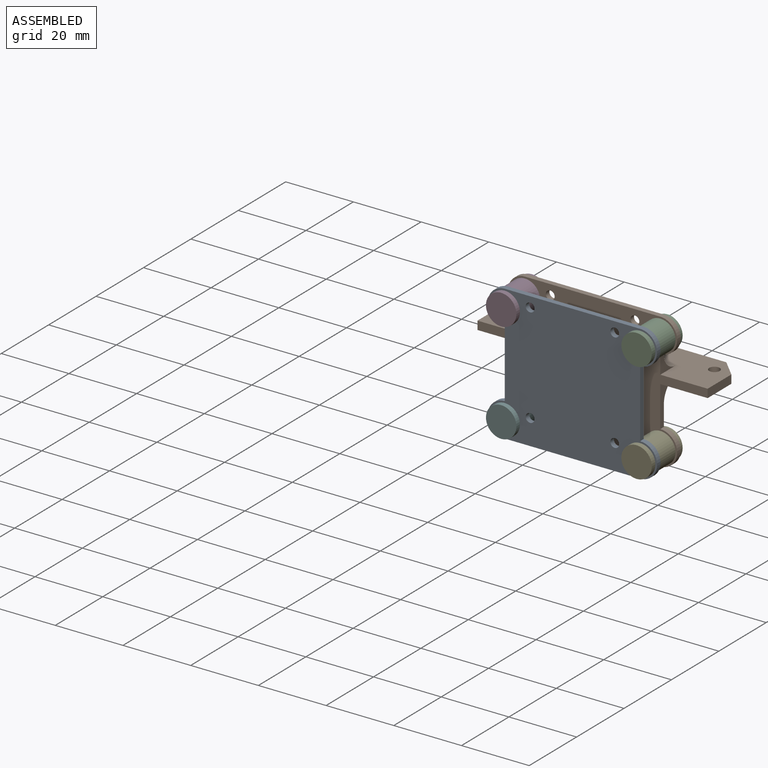
[diagram: assembled view]
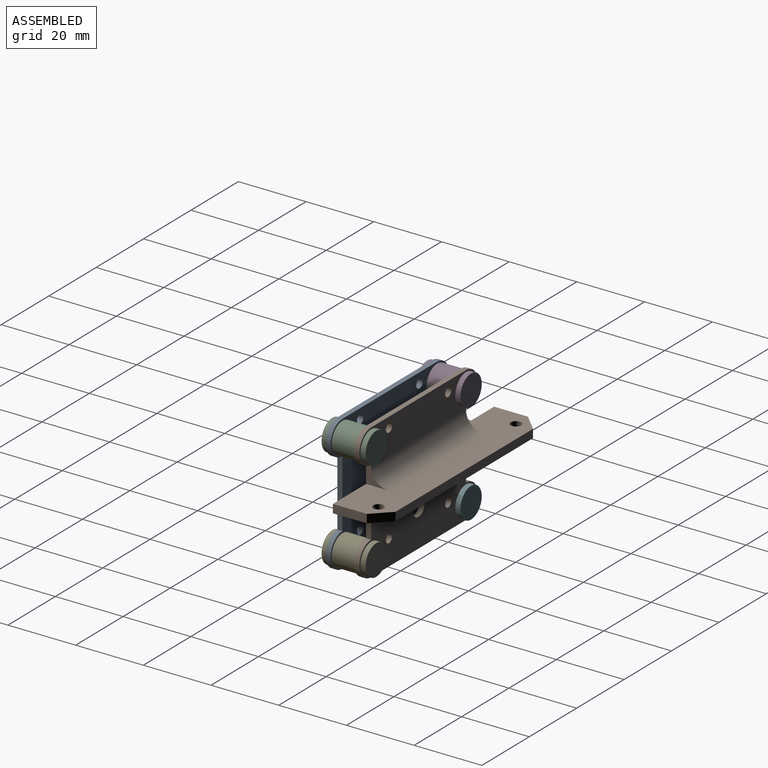
[diagram: assembled view, second angle]
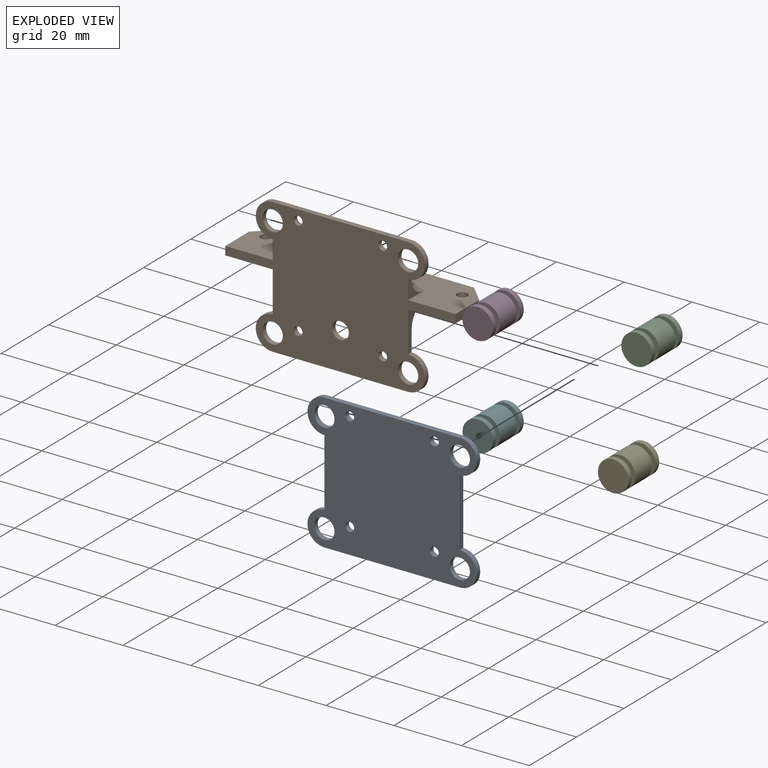
[diagram: exploded view]
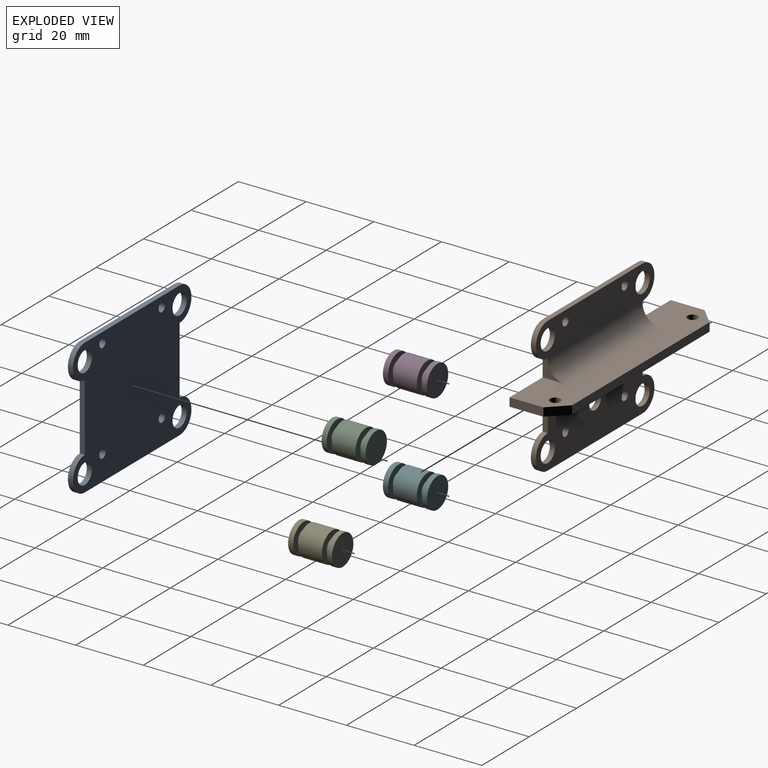
[diagram: exploded view, second angle]
ASSEMBLY  parts=6 mates=6
PART A: 18 faces, bbox 50x40x1.5 mm
  f0: cylinder r=5mm len=10mm, axis (0,0,-1), area 23.6mm2, adj f1,f14,f16,f17
  f1: plane 40x1.5mm, normal (0,1,0), area 60mm2, adj f0,f2,f16,f17
  f2: cylinder r=5mm len=10mm, axis (0,0,-1), area 23.6mm2, adj f1,f3,f16,f17
  f3: plane 20x1.5mm, normal (-1,0,0), area 30mm2, adj f2,f4,f16,f17
  f4: cylinder r=5mm len=10mm, axis (0,0,-1), area 23.6mm2, adj f3,f5,f16,f17
  f5: plane 40x1.5mm, normal (0,-1,0), area 60mm2, adj f4,f6,f16,f17
  f6: cylinder r=5mm len=10mm, axis (0,0,-1), area 23.6mm2, adj f5,f14,f16,f17
  f7: cylinder r=3mm len=6mm, axis (0,0,-1), area 28.3mm2, adj f16,f17
  f8: cylinder r=3mm len=6mm, axis (0,0,-1), area 28.3mm2, adj f16,f17
  f9: cylinder r=3mm len=6mm, axis (0,0,-1), area 28.3mm2, adj f16,f17
  f10: cylinder r=1.3mm len=2.6mm, axis (0,0,-1), area 12.3mm2, adj f16,f17
  f11: cylinder r=1.3mm len=2.6mm, axis (0,0,-1), area 12.3mm2, adj f16,f17
  f12: cylinder r=1.3mm len=2.6mm, axis (0,0,-1), area 12.3mm2, adj f16,f17
  f13: cylinder r=1.3mm len=2.6mm, axis (0,0,-1), area 12.3mm2, adj f16,f17
  f14: plane 20x1.5mm, normal (1,0,0), area 30mm2, adj f0,f6,f16,f17
  f15: cylinder r=3mm len=6mm, axis (0,0,-1), area 28.3mm2, adj f16,f17
  f16: plane 50x40mm, normal (0,0,1), area 1622.7mm2, adj f0,f1,f2,f3,f4,f5,f6,f7
  f17: plane 50x40mm, normal (0,0,-1), area 1622.7mm2, adj f0,f1,f2,f3,f4,f5,f6,f7
PART B: 33 faces, bbox 68x15x40 mm
  f0: plane 68x40mm, normal (0,-1,0), area 1673.1mm2, adj f1,f7,f8,f9,f10,f11,f12,f13
  f1: plane 10x2.5mm, normal (1,0,0), area 25mm2, adj f0,f2,f8,f9
  f2: plane 5x5mm, normal (0.71,0.71,0), area 17.7mm2, adj f1,f3,f8,f9
  f3: plane 58x2.5mm, normal (0,1,0), area 145mm2, adj f2,f4,f8,f9
  f4: plane 5x5mm, normal (-0.71,0.71,0), area 17.7mm2, adj f3,f7,f8,f9
  f5: cylinder r=1.55mm len=3.1mm, axis (0,0,-1), area 24.3mm2, adj f8,f9
  f6: cylinder r=1.55mm len=3.1mm, axis (0,0,-1), area 24.3mm2, adj f8,f9
  f7: plane 10x2.5mm, normal (-1,0,0), area 25mm2, adj f0,f4,f8,f9
  f8: plane 68x15mm, normal (0,0,1), area 719.9mm2, adj f0,f1,f2,f3,f4,f5,f6,f7
  f9: plane 68x15mm, normal (0,0,-1), area 679.9mm2, adj f0,f1,f2,f3,f4,f5,f6,f7
  f10: cylinder r=5mm len=10mm, axis (0,-1,0), area 23.6mm2, adj f0,f11,f18,f20
  f11: plane 40x1.5mm, normal (0,0,-1), area 60mm2, adj f0,f10,f12,f18
  f12: cylinder r=5mm len=10mm, axis (0,-1,0), area 23.6mm2, adj f0,f11,f18,f19
  f13: cylinder r=1.3mm len=2.6mm, axis (0,-1,0), area 12.3mm2, adj f0,f18
  f14: cylinder r=1.3mm len=2.6mm, axis (0,-1,0), area 12.3mm2, adj f0,f18
  f15: cylinder r=3mm len=6mm, axis (0,-1,0), area 28.3mm2, adj f0,f18
  f16: cylinder r=3mm len=6mm, axis (0,-1,0), area 28.3mm2, adj f0,f18
  f17: cylinder r=2.5mm len=5mm, axis (0,-1,0), area 23.6mm2, adj f0,f18
  f18: plane 50x16mm, normal (0,1,0), area 631.7mm2, adj f10,f11,f12,f13,f14,f15,f16,f17
  f19: plane 12x7.5mm, normal (1,0,0), area 25.7mm2, adj f0,f9,f12,f18,f31
  f20: plane 12x7.5mm, normal (-1,0,0), area 25.7mm2, adj f0,f9,f10,f18,f31
  f21: cylinder r=5mm len=10mm, axis (0,-1,0), area 23.6mm2, adj f0,f22,f28,f30
  f22: plane 40x1.5mm, normal (0,0,1), area 60mm2, adj f0,f21,f23,f30
  f23: cylinder r=5mm len=10mm, axis (0,-1,0), area 23.6mm2, adj f0,f22,f24,f30
  f24: plane 6.5x5.5mm, normal (-1,0,0), area 13.6mm2, adj f0,f8,f23,f30,f32
  f25: cylinder r=3mm len=6mm, axis (0,-1,0), area 28.3mm2, adj f0,f30
  f26: cylinder r=1.3mm len=2.6mm, axis (0,-1,0), area 12.3mm2, adj f0,f30
  f27: cylinder r=1.3mm len=2.6mm, axis (0,-1,0), area 12.3mm2, adj f0,f30
  f28: plane 6.5x5.5mm, normal (1,0,0), area 13.6mm2, adj f0,f8,f21,f30,f32
  f29: cylinder r=3mm len=6mm, axis (0,-1,0), area 28.3mm2, adj f0,f30
  f30: plane 50x10.5mm, normal (0,1,0), area 431.4mm2, adj f21,f22,f23,f24,f25,f26,f27,f28
  f31: cylinder r=6mm len=40mm, axis (-1,0,0), area 377mm2, adj f9,f18,f19,f20
  f32: cylinder r=5mm len=40mm, axis (1,0,0), area 314.2mm2, adj f8,f24,f28,f30
PART C: 11 faces, bbox 9x9x13 mm
  f0: plane 9x9mm, normal (0,0,-1), area 63.6mm2, adj f10
  f1: plane 9x9mm, normal (0,0,1), area 63.6mm2, adj f2
  f2: cylinder r=4.5mm len=9mm, axis (0,0,1), area 42.4mm2, adj f1,f3
  f3: plane 9x9mm, normal (0,0,-1), area 44mm2, adj f2,f4
  f4: cylinder r=2.5mm len=5mm, axis (0,0,1), area 23.6mm2, adj f3,f5
  f5: plane 9x9mm, normal (0,0,1), area 44mm2, adj f4,f6
  f6: cylinder r=4.5mm len=9mm, axis (0,0,1), area 197.9mm2, adj f5,f7
  f7: plane 9x9mm, normal (0,0,-1), area 44mm2, adj f6,f8
  f8: cylinder r=2.5mm len=5mm, axis (0,0,1), area 23.6mm2, adj f7,f9
  f9: plane 9x9mm, normal (0,0,1), area 44mm2, adj f8,f10
  f10: cylinder r=4.5mm len=9mm, axis (0,0,1), area 42.4mm2, adj f0,f9
PART D: same geometry as C
PART E: same geometry as C
PART F: same geometry as C
PLACE A rot(axis=(1,0,0),90deg) t=(-10.71,-10.7,-24.77)mm
PLACE B t=(-10.71,-3.7,-2.77)mm
PLACE C rot(axis=(-1,0,0),90deg) t=(9.29,-13.7,10.23)mm
PLACE D rot(axis=(-1,0,0),90deg) t=(-30.71,-13.7,10.23)mm
PLACE E rot(axis=(-1,0,0),90deg) t=(9.29,-13.7,-19.77)mm
PLACE F rot(axis=(-1,0,0),90deg) t=(-30.71,-13.7,-19.77)mm
MATE revolute C.f2 <-> A.f0  axis (0,1,0) through (9.29,-12.2,10.23)mm
MATE revolute D.f2 <-> B.f23  axis (0,1,0) through (-30.71,-3.7,10.23)mm
MATE revolute C.f2 <-> B.f21  axis (0,1,0) through (9.29,-3.7,10.23)mm
MATE revolute E.f2 <-> B.f12  axis (0,1,0) through (9.29,-3.7,-19.77)mm
MATE revolute A.f2 <-> D.f2  axis (0,1,0) through (-30.71,-10.7,10.23)mm
MATE revolute F.f2 <-> B.f10  axis (0,1,0) through (-30.71,-3.7,-19.77)mm
